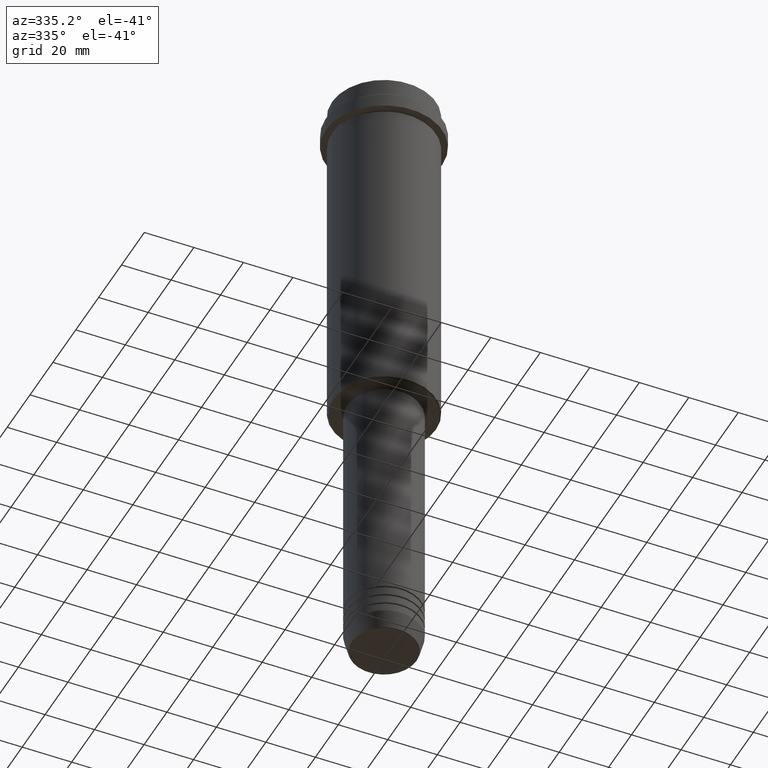
[diagram: clean part render]
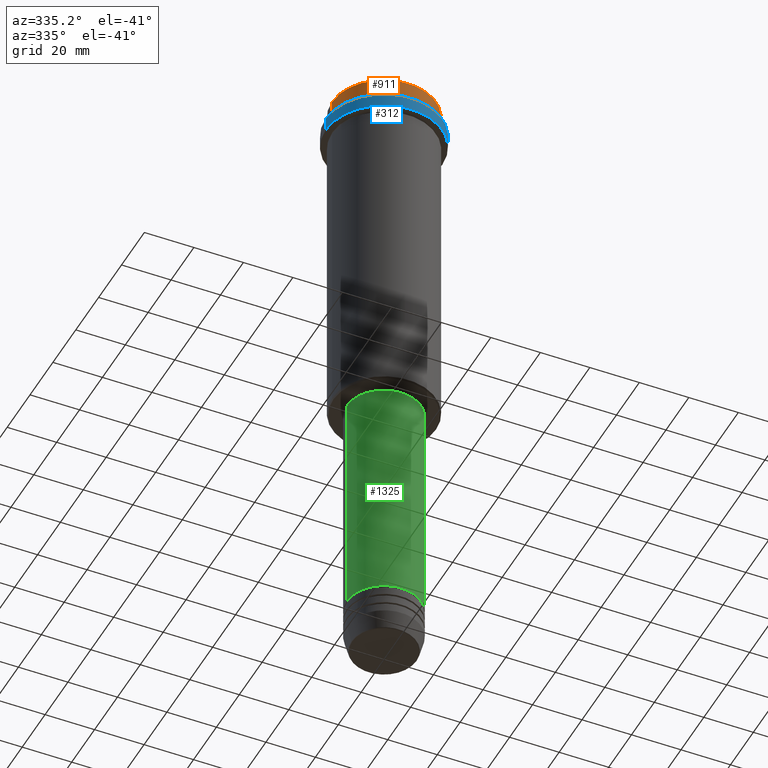
[diagram: same view with three faces highlighted in distinct colors, each labeled with its STEP entity id]
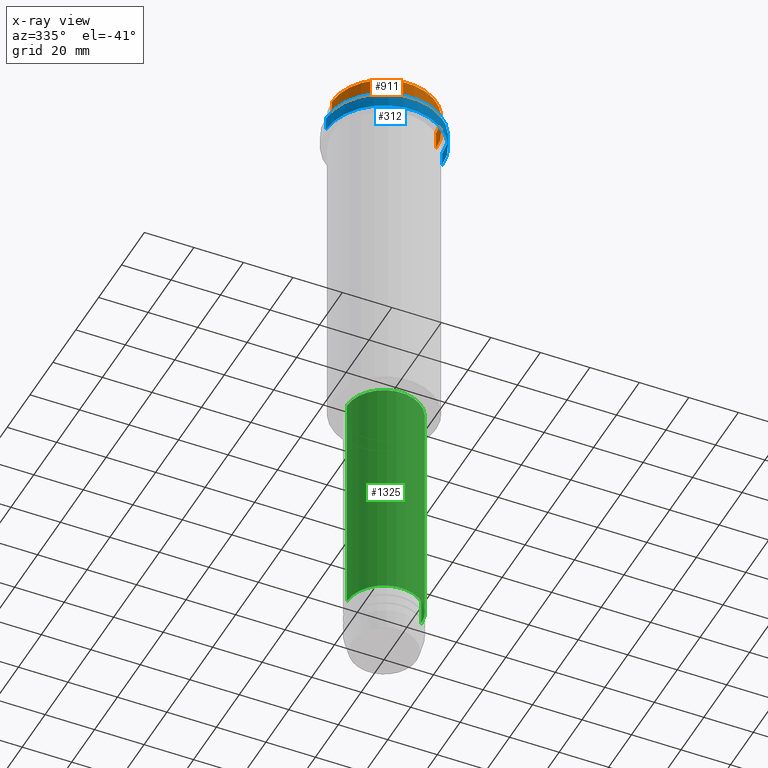
[diagram: x-ray of the same camera — body ghosted, the three highlighted faces saturated]
A machine part, auxiliary view with three faces highlighted in distinct colors.
The next image is the same camera in x-ray (body ghosted, the three faces saturated) — at least one of them is partly hidden behind the body in this view.
Their STEP definitions:

[orange] entity #911 — the highlighted cylindrical surface (partial cylindrical patch) has radius 21 mm, axis along (-0, -0, 1).
#5 = CIRCLE ( 'NONE', #1376, 21.00000000000000000 ) ;
#25 = ORIENTED_EDGE ( 'NONE', *, *, #568, .F. ) ;
#67 = ORIENTED_EDGE ( 'NONE', *, *, #921, .T. ) ;
#118 = DIRECTION ( 'NONE',  ( 1.000000000000000000, 0.000000000000000000, 0.000000000000000000 ) ) ;
#150 = EDGE_CURVE ( 'NONE', #188, #777, #5, .T. ) ;
#188 = VERTEX_POINT ( 'NONE', #1411 ) ;
#191 = CARTESIAN_POINT ( 'NONE',  ( 21.00000000000000000, 0.000000000000000000, 0.000000000000000000 ) ) ;
#200 = CYLINDRICAL_SURFACE ( 'NONE', #470, 21.00000000000000000 ) ;
#238 = CARTESIAN_POINT ( 'NONE',  ( -21.00000000000000000, 2.571758278209441661E-15, -0.4999999999999276135 ) ) ;
#286 = FACE_OUTER_BOUND ( 'NONE', #1304, .T. ) ;
#294 = EDGE_CURVE ( 'NONE', #809, #325, #1218, .T. ) ;
#325 = VERTEX_POINT ( 'NONE', #238 ) ;
#329 = VECTOR ( 'NONE', #878, 1000.000000000000000 ) ;
#389 = DIRECTION ( 'NONE',  ( -0.000000000000000000, -0.000000000000000000, 1.000000000000000000 ) ) ;
#470 = AXIS2_PLACEMENT_3D ( 'NONE', #1282, #1055, #1160 ) ;
#568 = EDGE_CURVE ( 'NONE', #188, #325, #1065, .T. ) ;
#618 = ORIENTED_EDGE ( 'NONE', *, *, #150, .T. ) ;
#633 = DIRECTION ( 'NONE',  ( 1.000000000000000000, 0.000000000000000000, 0.000000000000000000 ) ) ;
#635 = CARTESIAN_POINT ( 'NONE',  ( 21.00000000000000000, 0.000000000000000000, -0.4999999999999276135 ) ) ;
#753 = CARTESIAN_POINT ( 'NONE',  ( -21.00000000000000000, 2.571758278209441661E-15, 0.000000000000000000 ) ) ;
#754 = DIRECTION ( 'NONE',  ( -0.000000000000000000, -0.000000000000000000, 1.000000000000000000 ) ) ;
#777 = VERTEX_POINT ( 'NONE', #1090 ) ;
#809 = VERTEX_POINT ( 'NONE', #635 ) ;
#878 = DIRECTION ( 'NONE',  ( -0.000000000000000000, -0.000000000000000000, 1.000000000000000000 ) ) ;
#904 = DIRECTION ( 'NONE',  ( 0.000000000000000000, 0.000000000000000000, -1.000000000000000000 ) ) ;
#911 = ADVANCED_FACE ( 'NONE', ( #286 ), #200, .T. ) ;
#921 = EDGE_CURVE ( 'NONE', #777, #809, #1164, .T. ) ;
#1036 = AXIS2_PLACEMENT_3D ( 'NONE', #1115, #904, #118 ) ;
#1055 = DIRECTION ( 'NONE',  ( -0.000000000000000000, -0.000000000000000000, 1.000000000000000000 ) ) ;
#1065 = LINE ( 'NONE', #753, #329 ) ;
#1072 = CARTESIAN_POINT ( 'NONE',  ( 0.000000000000000000, 0.000000000000000000, -7.999999999999998224 ) ) ;
#1090 = CARTESIAN_POINT ( 'NONE',  ( 21.00000000000000000, 0.000000000000000000, -7.999999999999998224 ) ) ;
#1115 = CARTESIAN_POINT ( 'NONE',  ( 0.000000000000000000, 0.000000000000000000, -0.4999999999999276135 ) ) ;
#1160 = DIRECTION ( 'NONE',  ( 1.000000000000000000, 0.000000000000000000, 0.000000000000000000 ) ) ;
#1164 = LINE ( 'NONE', #191, #1266 ) ;
#1218 = CIRCLE ( 'NONE', #1036, 21.00000000000000000 ) ;
#1239 = ORIENTED_EDGE ( 'NONE', *, *, #294, .T. ) ;
#1266 = VECTOR ( 'NONE', #389, 1000.000000000000000 ) ;
#1282 = CARTESIAN_POINT ( 'NONE',  ( 0.000000000000000000, 0.000000000000000000, 0.000000000000000000 ) ) ;
#1304 = EDGE_LOOP ( 'NONE', ( #25, #618, #67, #1239 ) ) ;
#1376 = AXIS2_PLACEMENT_3D ( 'NONE', #1072, #754, #633 ) ;
#1411 = CARTESIAN_POINT ( 'NONE',  ( -21.00000000000000000, 2.571758278209441661E-15, -7.999999999999998224 ) ) ;

[blue] entity #312 — the highlighted cylindrical surface (partial cylindrical patch) has radius 23.5 mm, axis along (-0, -0, 1).
#21 = CARTESIAN_POINT ( 'NONE',  ( -23.50000000000000000, 2.877919977996280320E-15, 0.000000000000000000 ) ) ;
#29 = DIRECTION ( 'NONE',  ( 1.000000000000000000, 0.000000000000000000, 0.000000000000000000 ) ) ;
#31 = DIRECTION ( 'NONE',  ( -0.000000000000000000, -0.000000000000000000, 1.000000000000000000 ) ) ;
#54 = CIRCLE ( 'NONE', #864, 23.50000000000000355 ) ;
#73 = VECTOR ( 'NONE', #324, 1000.000000000000000 ) ;
#84 = CARTESIAN_POINT ( 'NONE',  ( -23.50000000000000000, 2.877919977996280320E-15, -9.500000000000000000 ) ) ;
#221 = ORIENTED_EDGE ( 'NONE', *, *, #708, .T. ) ;
#231 = VERTEX_POINT ( 'NONE', #896 ) ;
#312 = ADVANCED_FACE ( 'NONE', ( #348 ), #1014, .T. ) ;
#321 = LINE ( 'NONE', #1187, #1020 ) ;
#324 = DIRECTION ( 'NONE',  ( -0.000000000000000000, -0.000000000000000000, 1.000000000000000000 ) ) ;
#348 = FACE_OUTER_BOUND ( 'NONE', #1340, .T. ) ;
#365 = CARTESIAN_POINT ( 'NONE',  ( 0.000000000000000000, 0.000000000000000000, -15.00000000000000000 ) ) ;
#390 = EDGE_CURVE ( 'NONE', #231, #620, #1262, .T. ) ;
#457 = ORIENTED_EDGE ( 'NONE', *, *, #390, .T. ) ;
#524 = DIRECTION ( 'NONE',  ( -0.000000000000000000, -0.000000000000000000, 1.000000000000000000 ) ) ;
#529 = VERTEX_POINT ( 'NONE', #963 ) ;
#549 = EDGE_CURVE ( 'NONE', #800, #231, #321, .T. ) ;
#598 = ORIENTED_EDGE ( 'NONE', *, *, #549, .T. ) ;
#620 = VERTEX_POINT ( 'NONE', #84 ) ;
#708 = EDGE_CURVE ( 'NONE', #529, #800, #54, .T. ) ;
#786 = DIRECTION ( 'NONE',  ( 1.000000000000000000, 0.000000000000000000, 0.000000000000000000 ) ) ;
#800 = VERTEX_POINT ( 'NONE', #1311 ) ;
#864 = AXIS2_PLACEMENT_3D ( 'NONE', #365, #1013, #29 ) ;
#896 = CARTESIAN_POINT ( 'NONE',  ( 23.50000000000000000, 0.000000000000000000, -9.500000000000000000 ) ) ;
#909 = AXIS2_PLACEMENT_3D ( 'NONE', #1127, #31, #786 ) ;
#942 = CARTESIAN_POINT ( 'NONE',  ( 0.000000000000000000, 0.000000000000000000, -9.500000000000000000 ) ) ;
#963 = CARTESIAN_POINT ( 'NONE',  ( -23.50000000000000711, 2.877919977996281109E-15, -15.00000000000000000 ) ) ;
#978 = AXIS2_PLACEMENT_3D ( 'NONE', #942, #1256, #1274 ) ;
#1013 = DIRECTION ( 'NONE',  ( -0.000000000000000000, -0.000000000000000000, 1.000000000000000000 ) ) ;
#1014 = CYLINDRICAL_SURFACE ( 'NONE', #909, 23.50000000000000000 ) ;
#1020 = VECTOR ( 'NONE', #524, 1000.000000000000000 ) ;
#1034 = ORIENTED_EDGE ( 'NONE', *, *, #1049, .F. ) ;
#1049 = EDGE_CURVE ( 'NONE', #529, #620, #1302, .T. ) ;
#1127 = CARTESIAN_POINT ( 'NONE',  ( 0.000000000000000000, 0.000000000000000000, 0.000000000000000000 ) ) ;
#1187 = CARTESIAN_POINT ( 'NONE',  ( 23.50000000000000000, 0.000000000000000000, 0.000000000000000000 ) ) ;
#1256 = DIRECTION ( 'NONE',  ( 0.000000000000000000, 0.000000000000000000, -1.000000000000000000 ) ) ;
#1262 = CIRCLE ( 'NONE', #978, 23.50000000000000000 ) ;
#1274 = DIRECTION ( 'NONE',  ( 1.000000000000000000, 0.000000000000000000, 0.000000000000000000 ) ) ;
#1302 = LINE ( 'NONE', #21, #73 ) ;
#1311 = CARTESIAN_POINT ( 'NONE',  ( 23.50000000000000355, 0.000000000000000000, -15.00000000000000000 ) ) ;
#1340 = EDGE_LOOP ( 'NONE', ( #1034, #221, #598, #457 ) ) ;

[green] entity #1325 — the highlighted cylindrical surface (partial cylindrical patch) has radius 15 mm, axis along (-0, -0, 1).
#16 = EDGE_CURVE ( 'NONE', #423, #1230, #1140, .T. ) ;
#26 = EDGE_CURVE ( 'NONE', #1230, #427, #258, .T. ) ;
#38 = EDGE_CURVE ( 'NONE', #423, #271, #1099, .T. ) ;
#114 = AXIS2_PLACEMENT_3D ( 'NONE', #290, #1368, #1151 ) ;
#180 = DIRECTION ( 'NONE',  ( 1.000000000000000000, 0.000000000000000000, 0.000000000000000000 ) ) ;
#181 = DIRECTION ( 'NONE',  ( 1.000000000000000000, 0.000000000000000000, 0.000000000000000000 ) ) ;
#258 = CIRCLE ( 'NONE', #114, 15.00000000000000000 ) ;
#271 = VERTEX_POINT ( 'NONE', #1236 ) ;
#290 = CARTESIAN_POINT ( 'NONE',  ( 0.000000000000000000, 0.000000000000000000, -146.0000000000000284 ) ) ;
#302 = VECTOR ( 'NONE', #1385, 1000.000000000000000 ) ;
#371 = LINE ( 'NONE', #589, #1083 ) ;
#423 = VERTEX_POINT ( 'NONE', #849 ) ;
#427 = VERTEX_POINT ( 'NONE', #1246 ) ;
#432 = ORIENTED_EDGE ( 'NONE', *, *, #38, .T. ) ;
#463 = DIRECTION ( 'NONE',  ( -0.000000000000000000, -0.000000000000000000, 1.000000000000000000 ) ) ;
#533 = AXIS2_PLACEMENT_3D ( 'NONE', #634, #856, #181 ) ;
#589 = CARTESIAN_POINT ( 'NONE',  ( 15.00000000000000000, 0.000000000000000000, 0.000000000000000000 ) ) ;
#634 = CARTESIAN_POINT ( 'NONE',  ( 0.000000000000000000, 0.000000000000000000, 0.000000000000000000 ) ) ;
#661 = ORIENTED_EDGE ( 'NONE', *, *, #1107, .T. ) ;
#673 = AXIS2_PLACEMENT_3D ( 'NONE', #711, #1158, #180 ) ;
#711 = CARTESIAN_POINT ( 'NONE',  ( 0.000000000000000000, 0.000000000000000000, -240.9999999999998863 ) ) ;
#730 = ORIENTED_EDGE ( 'NONE', *, *, #26, .F. ) ;
#810 = CARTESIAN_POINT ( 'NONE',  ( -15.00000000000000000, 1.836970198721029589E-15, -146.0000000000000284 ) ) ;
#836 = FACE_OUTER_BOUND ( 'NONE', #1374, .T. ) ;
#849 = CARTESIAN_POINT ( 'NONE',  ( -15.00000000000000000, 1.836970198721029589E-15, -240.9999999999998863 ) ) ;
#856 = DIRECTION ( 'NONE',  ( -0.000000000000000000, -0.000000000000000000, 1.000000000000000000 ) ) ;
#964 = CARTESIAN_POINT ( 'NONE',  ( -15.00000000000000000, 1.836970198721029589E-15, 0.000000000000000000 ) ) ;
#1083 = VECTOR ( 'NONE', #463, 1000.000000000000000 ) ;
#1099 = CIRCLE ( 'NONE', #673, 15.00000000000000000 ) ;
#1107 = EDGE_CURVE ( 'NONE', #271, #427, #371, .T. ) ;
#1140 = LINE ( 'NONE', #964, #302 ) ;
#1151 = DIRECTION ( 'NONE',  ( 1.000000000000000000, 0.000000000000000000, 0.000000000000000000 ) ) ;
#1158 = DIRECTION ( 'NONE',  ( -0.000000000000000000, -0.000000000000000000, 1.000000000000000000 ) ) ;
#1171 = CYLINDRICAL_SURFACE ( 'NONE', #533, 15.00000000000000000 ) ;
#1208 = ORIENTED_EDGE ( 'NONE', *, *, #16, .F. ) ;
#1230 = VERTEX_POINT ( 'NONE', #810 ) ;
#1236 = CARTESIAN_POINT ( 'NONE',  ( 15.00000000000000000, 0.000000000000000000, -240.9999999999998863 ) ) ;
#1246 = CARTESIAN_POINT ( 'NONE',  ( 15.00000000000000000, 0.000000000000000000, -146.0000000000000284 ) ) ;
#1325 = ADVANCED_FACE ( 'NONE', ( #836 ), #1171, .T. ) ;
#1368 = DIRECTION ( 'NONE',  ( -0.000000000000000000, -0.000000000000000000, 1.000000000000000000 ) ) ;
#1374 = EDGE_LOOP ( 'NONE', ( #1208, #432, #661, #730 ) ) ;
#1385 = DIRECTION ( 'NONE',  ( -0.000000000000000000, -0.000000000000000000, 1.000000000000000000 ) ) ;